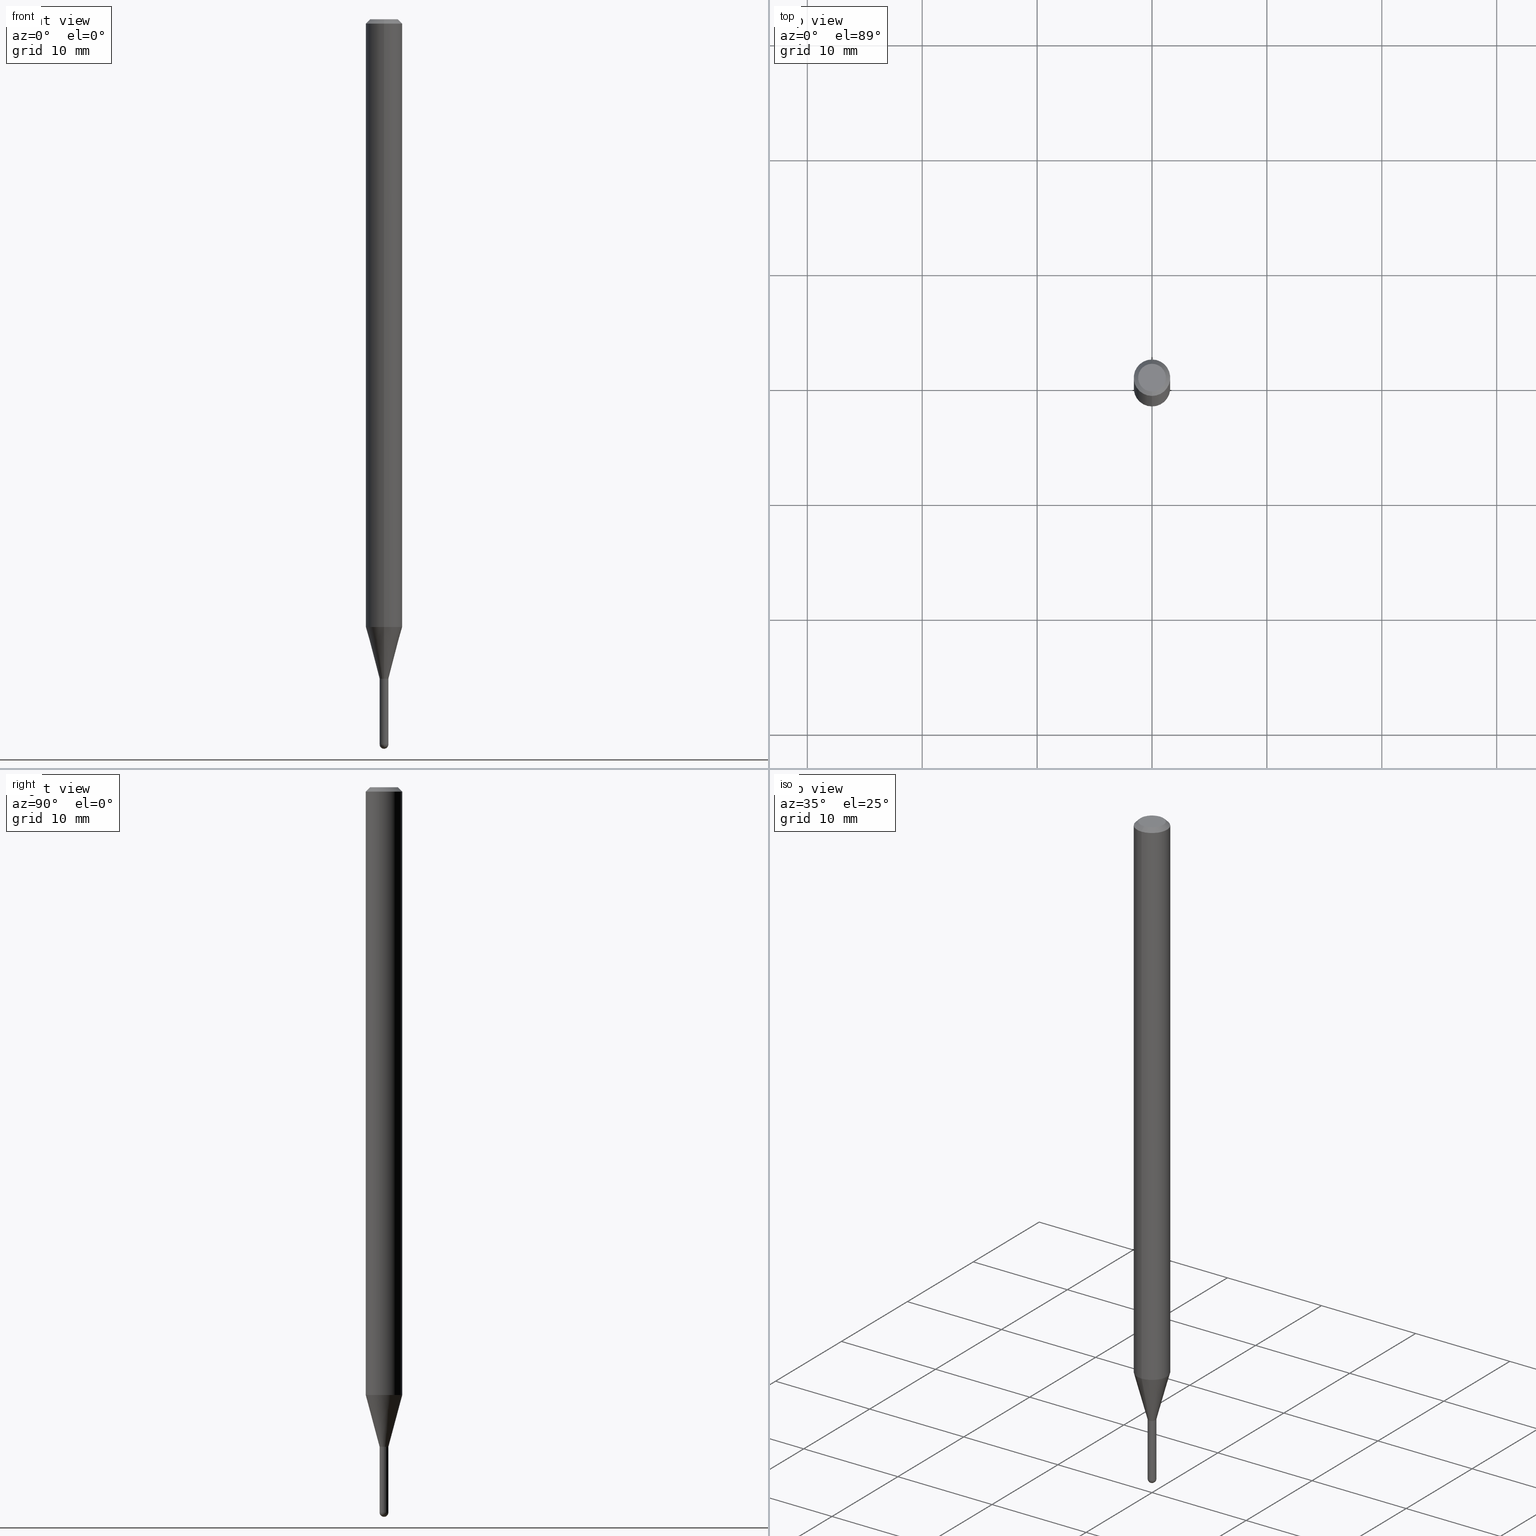
[diagram: canonical four-view strip — front | top / right | iso, engineering-drawing reading convention]
A machine part, canonical four-view strip (front | top / right | iso — engineering-drawing reading convention). The complete STEP part file that produces these views, byte-faithful:
ISO-10303-21;
HEADER;
FILE_DESCRIPTION (( 'STEP AP203' ),
    '1' );
FILE_NAME ('01531.STEP',
    '2024-03-07T19:37:06',
    ( '' ),
    ( '' ),
    'SwSTEP 2.0',
    'SolidWorks 2023',
    '' );
FILE_SCHEMA (( 'CONFIG_CONTROL_DESIGN' ));
ENDSEC;

DATA;
#1 = CARTESIAN_POINT ( 'NONE',  ( -0.01499999999999999771, -8.176958066041347477E-15, -2.484999999999999432 ) ) ;
#2 = APPROVAL_DATE_TIME ( #201, #327 ) ;
#3 = AXIS2_PLACEMENT_3D ( 'NONE', #276, #171, #8 ) ;
#4 = CARTESIAN_POINT ( 'NONE',  ( -4.364351673553408372E-16, -0.06250000000000728584, -2.082727586640484851 ) ) ;
#5 = ORIENTED_EDGE ( 'NONE', *, *, #286, .T. ) ;
#6 = DIRECTION ( 'NONE',  ( -6.982962677686265922E-15, -1.000000000000000000, 0.000000000000000000 ) ) ;
#7 = PERSON_AND_ORGANIZATION ( #439, #239 ) ;
#8 = DIRECTION ( 'NONE',  ( -6.982962677686265133E-15, -1.000000000000000000, 3.491391027709907932E-15 ) ) ;
#9 = CARTESIAN_POINT ( 'NONE',  ( 1.065814103640164291E-16, 0.01500000000000019894, -5.237086541564931268E-17 ) ) ;
#10 = EDGE_CURVE ( 'NONE', #387, #115, #427, .T. ) ;
#11 = AXIS2_PLACEMENT_3D ( 'NONE', #55, #248, #245 ) ;
#12 = CIRCLE ( 'NONE', #392, 0.01500000000000012608 ) ;
#13 = CYLINDRICAL_SURFACE ( 'NONE', #3, 0.01500000000000019894 ) ;
#14 = EDGE_CURVE ( 'NONE', #75, #159, #77, .T. ) ;
#15 = ORIENTED_EDGE ( 'NONE', *, *, #299, .T. ) ;
#16 = CARTESIAN_POINT ( 'NONE',  ( 0.000000000000000000, 0.000000000000000000, 0.000000000000000000 ) ) ;
#17 = CARTESIAN_POINT ( 'NONE',  ( 2.167868473204593348E-46, -3.094981762087513490E-32, -8.864609370659896502E-18 ) ) ;
#18 = PERSON_AND_ORGANIZATION ( #439, #239 ) ;
#19 = CIRCLE ( 'NONE', #108, 0.01499999999999999944 ) ;
#20 = CC_DESIGN_APPROVAL ( #65, ( #134 ) ) ;
#21 = LINE ( 'NONE', #410, #149 ) ;
#22 = AXIS2_PLACEMENT_3D ( 'NONE', #40, #110, #235 ) ;
#23 = CARTESIAN_POINT ( 'NONE',  ( -1.012529588263955736E-16, -0.01450000000000789026, -2.260000000000000675 ) ) ;
#24 = VERTEX_POINT ( 'NONE', #1 ) ;
#25 = LINE ( 'NONE', #378, #210 ) ;
#26 = ORIENTED_EDGE ( 'NONE', *, *, #365, .F. ) ;
#27 = DIRECTION ( 'NONE',  ( -2.445468806185136597E-29, 3.491481338843145583E-15, 1.000000000000000000 ) ) ;
#28 = CC_DESIGN_PERSON_AND_ORGANIZATION_ASSIGNMENT ( #18, #334, ( #134 ) ) ;
#29 = CIRCLE ( 'NONE', #231, 0.01499999999999999771 ) ;
#30 = LINE ( 'NONE', #265, #414 ) ;
#31 = EDGE_LOOP ( 'NONE', ( #278, #396, #360, #256 ) ) ;
#32 = DIRECTION ( 'NONE',  ( -6.982962677686265922E-15, -1.000000000000000000, 3.483106191921935554E-15 ) ) ;
#33 = EDGE_CURVE ( 'NONE', #140, #306, #506, .T. ) ;
#34 = ORIENTED_EDGE ( 'NONE', *, *, #64, .T. ) ;
#35 = VERTEX_POINT ( 'NONE', #155 ) ;
#36 = ORIENTED_EDGE ( 'NONE', *, *, #10, .F. ) ;
#37 = APPROVAL_PERSON_ORGANIZATION ( #139, #285, #488 ) ;
#38 = ORIENTED_EDGE ( 'NONE', *, *, #394, .F. ) ;
#39 = EDGE_LOOP ( 'NONE', ( #345, #456, #504, #88 ) ) ;
#40 = CARTESIAN_POINT ( 'NONE',  ( 5.526902026454056654E-29, -7.890543722624391870E-15, -2.260000000000000231 ) ) ;
#41 = DATE_AND_TIME ( #481, #349 ) ;
#42 = FACE_OUTER_BOUND ( 'NONE', #31, .T. ) ;
#43 = DIRECTION ( 'NONE',  ( 1.000000000000000000, 0.000000000000000000, 0.000000000000000000 ) ) ;
#44 = CIRCLE ( 'NONE', #184, 0.01500000000000019894 ) ;
#45 = AXIS2_PLACEMENT_3D ( 'NONE', #90, #243, #355 ) ;
#46 = DIRECTION ( 'NONE',  ( 2.445531870112414525E-29, -3.491391027709907932E-15, -1.000000000000000000 ) ) ;
#47 = CARTESIAN_POINT ( 'NONE',  ( 5.526902026454057775E-29, -7.890543722624393448E-15, -2.260000000000000675 ) ) ;
#48 = FACE_OUTER_BOUND ( 'NONE', #123, .T. ) ;
#49 =( CONVERSION_BASED_UNIT ( 'INCH', #125 ) LENGTH_UNIT ( ) NAMED_UNIT ( #495 ) );
#50 = CC_DESIGN_DATE_AND_TIME_ASSIGNMENT ( #336, #452, ( #332 ) ) ;
#51 = ORIENTED_EDGE ( 'NONE', *, *, #340, .T. ) ;
#52 = DIRECTION ( 'NONE',  ( -6.982962677686265922E-15, -1.000000000000000000, 0.000000000000000000 ) ) ;
#53 = EDGE_CURVE ( 'NONE', #35, #469, #272, .T. ) ;
#54 = CONICAL_SURFACE ( 'NONE', #290, 0.01450000000000000074, 0.7853981633974739252 ) ;
#55 = CARTESIAN_POINT ( 'NONE',  ( 1.047444401653492554E-16, 0.01499999999999210992, -2.260000000000000231 ) ) ;
#56 = DIRECTION ( 'NONE',  ( -6.982962677686265922E-15, -1.000000000000000000, 0.000000000000000000 ) ) ;
#57 = CARTESIAN_POINT ( 'NONE',  ( -1.047444401652401091E-16, -0.01500000000000809020, -2.260000000000000231 ) ) ;
#58 = CALENDAR_DATE ( 2024, 7, 3 ) ;
#59 = AXIS2_PLACEMENT_3D ( 'NONE', #287, #448, #96 ) ;
#60 = LOCAL_TIME ( 14, 37, 6.000000000000000000, #314 ) ;
#61 = DIRECTION ( 'NONE',  ( 1.000000000000000000, -6.982962677686204391E-15, 0.000000000000000000 ) ) ;
#62 = DIRECTION ( 'NONE',  ( -2.445531870112414525E-29, 3.491391027709907932E-15, 1.000000000000000000 ) ) ;
#63 = ADVANCED_FACE ( 'NONE', ( #313 ), #103, .T. ) ;
#64 = EDGE_CURVE ( 'NONE', #387, #390, #269, .T. ) ;
#65 = APPROVAL ( #240, 'UNSPECIFIED' ) ;
#66 = LINE ( 'NONE', #219, #407 ) ;
#67 = ADVANCED_FACE ( 'NONE', ( #79 ), #459, .T. ) ;
#68 = ORIENTED_EDGE ( 'NONE', *, *, #249, .T. ) ;
#69 = DIRECTION ( 'NONE',  ( -2.445531870112414525E-29, 3.491391027709907932E-15, 1.000000000000000000 ) ) ;
#70 = AXIS2_PLACEMENT_3D ( 'NONE', #382, #497, #374 ) ;
#71 = ORIENTED_EDGE ( 'NONE', *, *, #365, .T. ) ;
#72 = LINE ( 'NONE', #74, #257 ) ;
#73 = VERTEX_POINT ( 'NONE', #324 ) ;
#74 = CARTESIAN_POINT ( 'NONE',  ( -4.287811248607203282E-16, -0.06250000000000005551, -0.01499999999999979128 ) ) ;
#75 = VERTEX_POINT ( 'NONE', #4 ) ;
#76 = EDGE_LOOP ( 'NONE', ( #266, #113, #389, #120 ) ) ;
#77 = LINE ( 'NONE', #193, #310 ) ;
#78 = AXIS2_PLACEMENT_3D ( 'NONE', #288, #27, #261 ) ;
#79 = FACE_OUTER_BOUND ( 'NONE', #363, .T. ) ;
#80 = LINE ( 'NONE', #9, #87 ) ;
#81 = EDGE_CURVE ( 'NONE', #127, #140, #29, .T. ) ;
#82 = FACE_OUTER_BOUND ( 'NONE', #182, .T. ) ;
#83 = COORDINATED_UNIVERSAL_TIME_OFFSET ( 5, 0, .BEHIND. ) ;
#84 = DIRECTION ( 'NONE',  ( 1.000000000000000000, -6.982962677686204391E-15, 0.000000000000000000 ) ) ;
#85 = CALENDAR_DATE ( 2024, 7, 3 ) ;
#86 = AXIS2_PLACEMENT_3D ( 'NONE', #183, #337, #185 ) ;
#87 = VECTOR ( 'NONE', #441, 39.37007874015748143 ) ;
#88 = ORIENTED_EDGE ( 'NONE', *, *, #141, .F. ) ;
#89 = LINE ( 'NONE', #477, #317 ) ;
#90 = CARTESIAN_POINT ( 'NONE',  ( 5.526902026454057775E-29, -7.890543722624393448E-15, -2.260000000000000675 ) ) ;
#91 = ORIENTED_EDGE ( 'NONE', *, *, #141, .T. ) ;
#92 = CC_DESIGN_PERSON_AND_ORGANIZATION_ASSIGNMENT ( #122, #165, ( #395 ) ) ;
#93 = PLANE ( 'NONE',  #307 ) ;
#94 = APPLICATION_PROTOCOL_DEFINITION ( 'international standard', 'config_control_design', 1994, #206 ) ;
#95 = EDGE_LOOP ( 'NONE', ( #71, #430 ) ) ;
#96 = DIRECTION ( 'NONE',  ( -6.982962677686265922E-15, -1.000000000000000000, 3.483106191921935554E-15 ) ) ;
#97 = CARTESIAN_POINT ( 'NONE',  ( 5.526902026454057775E-29, -7.890543722624393448E-15, -2.260000000000000675 ) ) ;
#98 = DIRECTION ( 'NONE',  ( 6.982962677686265922E-15, 1.000000000000000000, 0.000000000000000000 ) ) ;
#99 = DIRECTION ( 'NONE',  ( -2.445531870112414525E-29, 3.491391027709907932E-15, 1.000000000000000000 ) ) ;
#100 = VECTOR ( 'NONE', #227, 39.37007874015748143 ) ;
#101 = CONICAL_SURFACE ( 'NONE', #233, 0.01450000000000000074, 0.7853981633974739252 ) ;
#102 = PLANE ( 'NONE',  #70 ) ;
#103 = CONICAL_SURFACE ( 'NONE', #500, 0.06250000000000000000, 0.7853981633974483900 ) ;
#104 = ADVANCED_FACE ( 'NONE', ( #82 ), #487, .T. ) ;
#105 = DIRECTION ( 'NONE',  ( -4.937700262164674260E-15, -0.7071067811865632269, 0.7071067811865319186 ) ) ;
#106 = CARTESIAN_POINT ( 'NONE',  ( 1.065814103640717110E-16, 0.01499999999999231115, -2.260000000000000231 ) ) ;
#107 = CARTESIAN_POINT ( 'NONE',  ( 3.668297805168624188E-31, -5.237086541564864708E-17, -0.01500000000000000812 ) ) ;
#108 = AXIS2_PLACEMENT_3D ( 'NONE', #189, #148, #229 ) ;
#109 = CC_DESIGN_APPROVAL ( #285, ( #332 ) ) ;
#110 = DIRECTION ( 'NONE',  ( -2.445531870112414525E-29, 3.491391027709907932E-15, 1.000000000000000000 ) ) ;
#111 = ORIENTED_EDGE ( 'NONE', *, *, #486, .F. ) ;
#112 = SPHERICAL_SURFACE ( 'NONE', #483, 0.01500000000000012608 ) ;
#113 = ORIENTED_EDGE ( 'NONE', *, *, #431, .T. ) ;
#114 = EDGE_LOOP ( 'NONE', ( #386, #316, #91, #367 ) ) ;
#115 = VERTEX_POINT ( 'NONE', #283 ) ;
#116 = ADVANCED_FACE ( 'NONE', ( #447 ), #93, .F. ) ;
#117 = AXIS2_PLACEMENT_3D ( 'NONE', #16, #329, #358 ) ;
#118 = DATE_TIME_ROLE ( 'creation_date' ) ;
#119 = CC_DESIGN_PERSON_AND_ORGANIZATION_ASSIGNMENT ( #281, #161, ( #134 ) ) ;
#120 = ORIENTED_EDGE ( 'NONE', *, *, #53, .F. ) ;
#121 = PLANE ( 'NONE',  #11 ) ;
#122 = PERSON_AND_ORGANIZATION ( #439, #239 ) ;
#123 = EDGE_LOOP ( 'NONE', ( #5, #273 ) ) ;
#124 = CARTESIAN_POINT ( 'NONE',  ( -1.065814103639546884E-16, -0.01500000000000874072, -2.484999999999999432 ) ) ;
#125 = LENGTH_MEASURE_WITH_UNIT ( LENGTH_MEASURE( 0.02539999999999999897 ), #205 );
#126 = CIRCLE ( 'NONE', #339, 0.04749999999999999362 ) ;
#127 = VERTEX_POINT ( 'NONE', #124 ) ;
#128 = DIRECTION ( 'NONE',  ( 6.982962677686265922E-15, 1.000000000000000000, -3.483106191921935554E-15 ) ) ;
#129 = CLOSED_SHELL ( 'NONE', ( #195, #362, #63, #353, #246, #158, #221, #67, #116, #319, #502, #457 ) ) ;
#130 = CARTESIAN_POINT ( 'NONE',  ( 4.440892098501133005E-16, 0.06249999999999271416, -2.082727586640485296 ) ) ;
#131 = ADVANCED_BREP_SHAPE_REPRESENTATION ( '01531', ( #376, #202, #509 ), #444 ) ;
#132 = CARTESIAN_POINT ( 'NONE',  ( -4.364351673553912750E-16, -0.06250000000000005551, -0.01499999999999979128 ) ) ;
#133 = CIRCLE ( 'NONE', #422, 0.01500000000000019894 ) ;
#134 = PRODUCT_DEFINITION_FORMATION_WITH_SPECIFIED_SOURCE ( 'ANY', '', #395, .NOT_KNOWN. ) ;
#135 = FACE_OUTER_BOUND ( 'NONE', #294, .T. ) ;
#136 = DIRECTION ( 'NONE',  ( -6.982962677686265133E-15, -1.000000000000000000, 0.000000000000000000 ) ) ;
#137 = ORIENTED_EDGE ( 'NONE', *, *, #384, .T. ) ;
#138 = CARTESIAN_POINT ( 'NONE',  ( 5.525679260519001860E-29, -7.888798027110538462E-15, -2.259500000000000508 ) ) ;
#139 = PERSON_AND_ORGANIZATION ( #439, #239 ) ;
#140 = VERTEX_POINT ( 'NONE', #280 ) ;
#141 = EDGE_CURVE ( 'NONE', #387, #75, #89, .T. ) ;
#142 = AXIS2_PLACEMENT_3D ( 'NONE', #162, #405, #52 ) ;
#143 = DIRECTION ( 'NONE',  ( -2.445531870112414525E-29, 3.491391027709907932E-15, 1.000000000000000000 ) ) ;
#144 = DIRECTION ( 'NONE',  ( -1.000000000000000000, 7.105427357601001070E-15, -4.926315508542082329E-29 ) ) ;
#145 = ORIENTED_EDGE ( 'NONE', *, *, #454, .T. ) ;
#146 = DIRECTION ( 'NONE',  ( -2.445531870112414525E-29, 3.491391027709907932E-15, 1.000000000000000000 ) ) ;
#147 = CARTESIAN_POINT ( 'NONE',  ( 3.668297805168624188E-31, -5.237086541564864708E-17, -0.01500000000000000812 ) ) ;
#148 = DIRECTION ( 'NONE',  ( -2.445468806185136597E-29, 3.491481338843145583E-15, 1.000000000000000000 ) ) ;
#149 = VECTOR ( 'NONE', #373, 39.37007874015748143 ) ;
#150 = AXIS2_PLACEMENT_3D ( 'NONE', #424, #146, #388 ) ;
#151 = CARTESIAN_POINT ( 'NONE',  ( 0.01499999999999999771, -1.047444401652939859E-16, 7.314265163693902638E-31 ) ) ;
#152 = APPLICATION_CONTEXT ( 'configuration controlled 3d designs of mechanical parts and assemblies' ) ;
#153 = ORIENTED_EDGE ( 'NONE', *, *, #380, .F. ) ;
#154 = ADVANCED_FACE ( 'NONE', ( #48 ), #121, .F. ) ;
#155 = CARTESIAN_POINT ( 'NONE',  ( 3.840629472727447874E-16, 0.04749999999999999362, -1.747056831868805136E-16 ) ) ;
#156 = CC_DESIGN_PERSON_AND_ORGANIZATION_ASSIGNMENT ( #473, #476, ( #511 ) ) ;
#157 = DIRECTION ( 'NONE',  ( 0.000000000000000000, 0.000000000000000000, 1.000000000000000000 ) ) ;
#158 = ADVANCED_FACE ( 'NONE', ( #204 ), #199, .T. ) ;
#159 = VERTEX_POINT ( 'NONE', #132 ) ;
#160 = AXIS2_PLACEMENT_3D ( 'NONE', #320, #361, #6 ) ;
#161 = PERSON_AND_ORGANIZATION_ROLE ( 'creator' ) ;
#162 = CARTESIAN_POINT ( 'NONE',  ( 5.526902026454056654E-29, -7.890543722624391870E-15, -2.260000000000000231 ) ) ;
#163 = DIRECTION ( 'NONE',  ( -6.982962677686265922E-15, -1.000000000000000000, 0.000000000000000000 ) ) ;
#164 = CARTESIAN_POINT ( 'NONE',  ( 1.065814103640713166E-16, 0.01499999999999225911, -2.259500000000000508 ) ) ;
#165 = PERSON_AND_ORGANIZATION_ROLE ( 'design_owner' ) ;
#166 = DIRECTION ( 'NONE',  ( 1.000000000000000000, -6.982962677686266711E-15, 4.876176775795935793E-29 ) ) ;
#167 = DIRECTION ( 'NONE',  ( -1.000000000000000000, 6.982962677686265922E-15, -4.883557194083112340E-29 ) ) ;
#168 = AXIS2_PLACEMENT_3D ( 'NONE', #209, #398, #207 ) ;
#169 = APPROVAL_PERSON_ORGANIZATION ( #406, #327, #369 ) ;
#170 = ORIENTED_EDGE ( 'NONE', *, *, #416, .T. ) ;
#171 = DIRECTION ( 'NONE',  ( -2.445531870112414525E-29, 3.491391027709907932E-15, 1.000000000000000000 ) ) ;
#172 = VERTEX_POINT ( 'NONE', #130 ) ;
#173 = EDGE_CURVE ( 'NONE', #418, #24, #297, .T. ) ;
#174 = CARTESIAN_POINT ( 'NONE',  ( 6.076989983370063053E-29, -8.676331127025215102E-15, -2.484999999999999432 ) ) ;
#175 = APPROVAL_DATE_TIME ( #372, #285 ) ;
#176 = DIRECTION ( 'NONE',  ( -2.445531870112414525E-29, 3.491391027709907932E-15, 1.000000000000000000 ) ) ;
#177 = CIRCLE ( 'NONE', #160, 0.01500000000000020067 ) ;
#178 = DIRECTION ( 'NONE',  ( -2.445531870112414525E-29, 3.491391027709907932E-15, 1.000000000000000000 ) ) ;
#179 = PERSON_AND_ORGANIZATION_ROLE ( 'classification_officer' ) ;
#180 = FACE_OUTER_BOUND ( 'NONE', #188, .T. ) ;
#181 = EDGE_CURVE ( 'NONE', #172, #75, #391, .T. ) ;
#182 = EDGE_LOOP ( 'NONE', ( #402, #51, #228, #247, #226 ) ) ;
#183 = CARTESIAN_POINT ( 'NONE',  ( 0.000000000000000000, 0.000000000000000000, 0.000000000000000000 ) ) ;
#184 = AXIS2_PLACEMENT_3D ( 'NONE', #409, #99, #379 ) ;
#185 = DIRECTION ( 'NONE',  ( -6.982962677686265922E-15, -1.000000000000000000, 3.491391027709907932E-15 ) ) ;
#186 = DIRECTION ( 'NONE',  ( -2.445531870112414525E-29, 3.491391027709908326E-15, 1.000000000000000000 ) ) ;
#187 = ORIENTED_EDGE ( 'NONE', *, *, #486, .T. ) ;
#188 = EDGE_LOOP ( 'NONE', ( #68, #170, #304, #351 ) ) ;
#189 = CARTESIAN_POINT ( 'NONE',  ( 5.526759501978408888E-29, -7.890747825785510097E-15, -2.260000000000000231 ) ) ;
#190 = ORIENTED_EDGE ( 'NONE', *, *, #508, .T. ) ;
#191 = AXIS2_PLACEMENT_3D ( 'NONE', #493, #462, #455 ) ;
#192 = LOCAL_TIME ( 14, 37, 6.000000000000000000, #255 ) ;
#193 = CARTESIAN_POINT ( 'NONE',  ( -4.364351673553916201E-16, -0.06250000000000000000, 2.182119392318692457E-16 ) ) ;
#194 = DIRECTION ( 'NONE',  ( 2.445531870112414525E-29, -3.491391027709907932E-15, -1.000000000000000000 ) ) ;
#195 = ADVANCED_FACE ( 'NONE', ( #364 ), #13, .F. ) ;
#196 = ORIENTED_EDGE ( 'NONE', *, *, #380, .T. ) ;
#197 = ORIENTED_EDGE ( 'NONE', *, *, #384, .F. ) ;
#198 = APPROVAL_DATE_TIME ( #41, #65 ) ;
#199 = CONICAL_SURFACE ( 'NONE', #142, 0.01500000000000020067, 0.2617993877991574569 ) ;
#200 = DIRECTION ( 'NONE',  ( -2.445468806185136597E-29, 3.491481338843145583E-15, 1.000000000000000000 ) ) ;
#201 = DATE_AND_TIME ( #85, #60 ) ;
#202 = MANIFOLD_SOLID_BREP ( 'Body-Move/Copy2[2]', #129 ) ;
#203 = ORIENTED_EDGE ( 'NONE', *, *, #81, .F. ) ;
#204 = FACE_OUTER_BOUND ( 'NONE', #114, .T. ) ;
#205 =( LENGTH_UNIT ( ) NAMED_UNIT ( * ) SI_UNIT ( $, .METRE. ) );
#206 = APPLICATION_CONTEXT ( 'configuration controlled 3d designs of mechanical parts and assemblies' ) ;
#207 = DIRECTION ( 'NONE',  ( -6.982962677686265922E-15, -1.000000000000000000, 4.370956789862821150E-15 ) ) ;
#208 = ORIENTED_EDGE ( 'NONE', *, *, #267, .T. ) ;
#209 = CARTESIAN_POINT ( 'NONE',  ( 5.093376689891620296E-29, -7.271616409160498436E-15, -2.082727586640484851 ) ) ;
#210 = VECTOR ( 'NONE', #218, 39.37007874015748143 ) ;
#211 = EDGE_CURVE ( 'NONE', #469, #159, #482, .T. ) ;
#212 = CYLINDRICAL_SURFACE ( 'NONE', #117, 0.06250000000000000000 ) ;
#213 = DIRECTION ( 'NONE',  ( -2.445531870112414525E-29, 3.491391027709907932E-15, 1.000000000000000000 ) ) ;
#214 = ADVANCED_FACE ( 'NONE', ( #408 ), #440, .T. ) ;
#215 = CARTESIAN_POINT ( 'NONE',  ( -1.047444401652404543E-16, -0.01500000000000813877, -2.259500000000000508 ) ) ;
#216 = SHAPE_DEFINITION_REPRESENTATION ( #315, #131 ) ;
#217 = LOCAL_TIME ( 14, 37, 6.000000000000000000, #83 ) ;
#218 = DIRECTION ( 'NONE',  ( -2.445468806185136877E-29, 3.491481338843145188E-15, 1.000000000000000000 ) ) ;
#219 = CARTESIAN_POINT ( 'NONE',  ( -1.012529588263955736E-16, -0.01450000000000789026, -2.260000000000000675 ) ) ;
#220 = SECURITY_CLASSIFICATION_LEVEL ( 'unclassified' ) ;
#221 = ADVANCED_FACE ( 'NONE', ( #42 ), #212, .T. ) ;
#222 = DIRECTION ( 'NONE',  ( -6.982962677686266711E-15, -1.000000000000000000, 3.491391027709907932E-15 ) ) ;
#223 = EDGE_CURVE ( 'NONE', #115, #387, #177, .T. ) ;
#224 = CIRCLE ( 'NONE', #191, 0.01499999999999999944 ) ;
#225 = LINE ( 'NONE', #106, #100 ) ;
#226 = ORIENTED_EDGE ( 'NONE', *, *, #449, .T. ) ;
#227 = DIRECTION ( 'NONE',  ( 1.839019923739649619E-15, 0.2588190451025318972, 0.9659258262890653146 ) ) ;
#228 = ORIENTED_EDGE ( 'NONE', *, *, #286, .F. ) ;
#229 = DIRECTION ( 'NONE',  ( 1.000000000000000000, -6.982962677686268288E-15, 0.000000000000000000 ) ) ;
#230 = VERTEX_POINT ( 'NONE', #164 ) ;
#231 = AXIS2_PLACEMENT_3D ( 'NONE', #400, #200, #480 ) ;
#232 = ADVANCED_FACE ( 'NONE', ( #321 ), #458, .T. ) ;
#233 = AXIS2_PLACEMENT_3D ( 'NONE', #47, #446, #163 ) ;
#234 = DIRECTION ( 'NONE',  ( -2.445468806185136877E-29, 3.491481338843145188E-15, 1.000000000000000000 ) ) ;
#235 = DIRECTION ( 'NONE',  ( -6.982962677686265922E-15, -1.000000000000000000, 0.000000000000000000 ) ) ;
#236 = APPROVAL_STATUS ( 'not_yet_approved' ) ;
#237 = CARTESIAN_POINT ( 'NONE',  ( 6.075707233936295932E-29, -8.678168097223937644E-15, -2.484999999999999876 ) ) ;
#238 =( NAMED_UNIT ( * ) SI_UNIT ( $, .STERADIAN. ) SOLID_ANGLE_UNIT ( ) );
#239 = ORGANIZATION ( 'UNSPECIFIED', 'UNSPECIFIED', '' ) ;
#240 = APPROVAL_STATUS ( 'not_yet_approved' ) ;
#241 = VERTEX_POINT ( 'NONE', #413 ) ;
#242 = DIRECTION ( 'NONE',  ( 6.982962677686265922E-15, 1.000000000000000000, -3.491391027709908326E-15 ) ) ;
#243 = DIRECTION ( 'NONE',  ( -2.445531870112414525E-29, 3.491391027709907932E-15, 1.000000000000000000 ) ) ;
#244 = ORIENTED_EDGE ( 'NONE', *, *, #431, .F. ) ;
#245 = DIRECTION ( 'NONE',  ( -1.000000000000000000, 6.982962677686265922E-15, -4.876176775795935793E-29 ) ) ;
#246 = ADVANCED_FACE ( 'NONE', ( #335 ), #507, .T. ) ;
#247 = ORIENTED_EDGE ( 'NONE', *, *, #33, .F. ) ;
#248 = DIRECTION ( 'NONE',  ( 2.438088387897960049E-29, -3.491481338843145188E-15, -1.000000000000000000 ) ) ;
#249 = EDGE_CURVE ( 'NONE', #75, #172, #348, .T. ) ;
#250 = CIRCLE ( 'NONE', #331, 0.01500000000000012608 ) ;
#251 = DIRECTION ( 'NONE',  ( -2.445531870112414525E-29, 3.491391027709907932E-15, 1.000000000000000000 ) ) ;
#252 = VECTOR ( 'NONE', #350, 39.37007874015748143 ) ;
#253 = CYLINDRICAL_SURFACE ( 'NONE', #86, 0.06250000000000000000 ) ;
#254 = CARTESIAN_POINT ( 'NONE',  ( 5.526902026454056654E-29, -7.890543722624391870E-15, -2.260000000000000231 ) ) ;
#255 = COORDINATED_UNIVERSAL_TIME_OFFSET ( 5, 0, .BEHIND. ) ;
#256 = ORIENTED_EDGE ( 'NONE', *, *, #211, .F. ) ;
#257 = VECTOR ( 'NONE', #268, 39.37007874015748143 ) ;
#258 = DIRECTION ( 'NONE',  ( -6.982962677686266711E-15, -1.000000000000000000, 3.491391027709907932E-15 ) ) ;
#259 = EDGE_LOOP ( 'NONE', ( #461, #137, #354, #203 ) ) ;
#260 = VECTOR ( 'NONE', #234, 39.37007874015748143 ) ;
#261 = DIRECTION ( 'NONE',  ( 1.000000000000000000, -6.982962677686266711E-15, 4.876176775795935793E-29 ) ) ;
#262 = EDGE_CURVE ( 'NONE', #24, #127, #491, .T. ) ;
#263 = CYLINDRICAL_SURFACE ( 'NONE', #150, 0.01500000000000019894 ) ;
#264 = AXIS2_PLACEMENT_3D ( 'NONE', #298, #494, #419 ) ;
#265 = CARTESIAN_POINT ( 'NONE',  ( 4.440892098500625669E-16, 0.06250000000000000000, -2.182119392318692457E-16 ) ) ;
#266 = ORIENTED_EDGE ( 'NONE', *, *, #305, .F. ) ;
#267 = EDGE_CURVE ( 'NONE', #342, #390, #66, .T. ) ;
#268 = DIRECTION ( 'NONE',  ( -4.851104656540964275E-15, -0.7071067811865500152, -0.7071067811865450192 ) ) ;
#269 = LINE ( 'NONE', #436, #252 ) ;
#270 = EDGE_CURVE ( 'NONE', #241, #342, #450, .T. ) ;
#271 = ORIENTED_EDGE ( 'NONE', *, *, #299, .F. ) ;
#272 = LINE ( 'NONE', #393, #438 ) ;
#273 = ORIENTED_EDGE ( 'NONE', *, *, #394, .T. ) ;
#274 = ORIENTED_EDGE ( 'NONE', *, *, #508, .F. ) ;
#275 = DIRECTION ( 'NONE',  ( 6.982962677686265922E-15, 1.000000000000000000, 0.000000000000000000 ) ) ;
#276 = CARTESIAN_POINT ( 'NONE',  ( 0.000000000000000000, 0.000000000000000000, 0.000000000000000000 ) ) ;
#277 = FACE_OUTER_BOUND ( 'NONE', #472, .T. ) ;
#278 = ORIENTED_EDGE ( 'NONE', *, *, #416, .F. ) ;
#279 = AXIS2_PLACEMENT_3D ( 'NONE', #107, #69, #32 ) ;
#280 = CARTESIAN_POINT ( 'NONE',  ( 0.01499999999999999771, -8.388283916570655181E-15, -2.484999999999999432 ) ) ;
#281 = PERSON_AND_ORGANIZATION ( #439, #239 ) ;
#282 = ORIENTED_EDGE ( 'NONE', *, *, #270, .T. ) ;
#283 = CARTESIAN_POINT ( 'NONE',  ( 2.753353101070928077E-16, 0.01499999999999231289, -2.260000000000000231 ) ) ;
#284 = CARTESIAN_POINT ( 'NONE',  ( 0.000000000000000000, 0.000000000000000000, 0.000000000000000000 ) ) ;
#285 = APPROVAL ( #490, 'UNSPECIFIED' ) ;
#286 = EDGE_CURVE ( 'NONE', #306, #296, #224, .T. ) ;
#287 = CARTESIAN_POINT ( 'NONE',  ( 3.668297805168624188E-31, -5.237086541564864708E-17, -0.01500000000000000812 ) ) ;
#288 = CARTESIAN_POINT ( 'NONE',  ( 0.000000000000000000, 0.000000000000000000, 0.000000000000000000 ) ) ;
#289 = PERSON_AND_ORGANIZATION ( #439, #239 ) ;
#290 = AXIS2_PLACEMENT_3D ( 'NONE', #97, #251, #56 ) ;
#291 = FACE_OUTER_BOUND ( 'NONE', #352, .T. ) ;
#292 = CLOSED_SHELL ( 'NONE', ( #104, #471, #154, #214, #232 ) ) ;
#293 = DIRECTION ( 'NONE',  ( -6.982962677686265922E-15, -1.000000000000000000, 0.000000000000000000 ) ) ;
#294 = EDGE_LOOP ( 'NONE', ( #274, #301 ) ) ;
#295 = CARTESIAN_POINT ( 'NONE',  ( 6.075707233936295932E-29, -8.678168097223937644E-15, -2.484999999999999876 ) ) ;
#296 = VERTEX_POINT ( 'NONE', #451 ) ;
#297 = CIRCLE ( 'NONE', #357, 0.01499999999999999771 ) ;
#298 = CARTESIAN_POINT ( 'NONE',  ( 5.526902026454057775E-29, -7.890543722624393448E-15, -2.260000000000000675 ) ) ;
#299 = EDGE_CURVE ( 'NONE', #230, #390, #44, .T. ) ;
#300 = DIRECTION ( 'NONE',  ( -7.105427357601001070E-15, -1.000000000000000000, 0.000000000000000000 ) ) ;
#301 = ORIENTED_EDGE ( 'NONE', *, *, #270, .F. ) ;
#302 = CARTESIAN_POINT ( 'NONE',  ( 1.047444401653551842E-16, 0.01499999999999138481, -2.484999999999999432 ) ) ;
#303 = EDGE_LOOP ( 'NONE', ( #421, #344, #312, #479, #38 ) ) ;
#304 = ORIENTED_EDGE ( 'NONE', *, *, #412, .F. ) ;
#305 = EDGE_CURVE ( 'NONE', #73, #35, #474, .T. ) ;
#306 = VERTEX_POINT ( 'NONE', #333 ) ;
#307 = AXIS2_PLACEMENT_3D ( 'NONE', #328, #489, #242 ) ;
#308 = AXIS2_PLACEMENT_3D ( 'NONE', #385, #420, #503 ) ;
#309 = DIRECTION ( 'NONE',  ( 6.982962677686265922E-15, 1.000000000000000000, -3.483106191921935554E-15 ) ) ;
#310 = VECTOR ( 'NONE', #470, 39.37007874015748143 ) ;
#311 = ORIENTED_EDGE ( 'NONE', *, *, #267, .F. ) ;
#312 = ORIENTED_EDGE ( 'NONE', *, *, #81, .T. ) ;
#313 = FACE_OUTER_BOUND ( 'NONE', #76, .T. ) ;
#314 = COORDINATED_UNIVERSAL_TIME_OFFSET ( 5, 0, .BEHIND. ) ;
#315 = PRODUCT_DEFINITION_SHAPE ( 'NONE', 'NONE',  #511 ) ;
#316 = ORIENTED_EDGE ( 'NONE', *, *, #223, .T. ) ;
#317 = VECTOR ( 'NONE', #445, 39.37007874015748854 ) ;
#318 = DIRECTION ( 'NONE',  ( 4.937700262164548042E-15, 0.7071067811865451302, -0.7071067811865499042 ) ) ;
#319 = ADVANCED_FACE ( 'NONE', ( #135 ), #102, .F. ) ;
#320 = CARTESIAN_POINT ( 'NONE',  ( 5.526902026454056654E-29, -7.890543722624391870E-15, -2.260000000000000231 ) ) ;
#321 = FACE_OUTER_BOUND ( 'NONE', #303, .T. ) ;
#322 = UNCERTAINTY_MEASURE_WITH_UNIT (LENGTH_MEASURE( 1.000000000000000082E-05 ), #49, 'distance_accuracy_value', 'NONE');
#323 = AXIS2_PLACEMENT_3D ( 'NONE', #330, #62, #498 ) ;
#324 = CARTESIAN_POINT ( 'NONE',  ( -3.773273898774340269E-16, -0.04749999999999999362, 1.569764644455607330E-16 ) ) ;
#325 = LOCAL_TIME ( 14, 37, 6.000000000000000000, #415 ) ;
#326 = MECHANICAL_CONTEXT ( 'NONE', #152, 'mechanical' ) ;
#327 = APPROVAL ( #236, 'UNSPECIFIED' ) ;
#328 = CARTESIAN_POINT ( 'NONE',  ( 3.316907271900976096E-16, 0.04749999999999999362, -1.702733785015505623E-16 ) ) ;
#329 = DIRECTION ( 'NONE',  ( -2.445531870112414525E-29, 3.491391027709907932E-15, 1.000000000000000000 ) ) ;
#330 = CARTESIAN_POINT ( 'NONE',  ( 5.093376689891620296E-29, -7.271616409160498436E-15, -2.082727586640484851 ) ) ;
#331 = AXIS2_PLACEMENT_3D ( 'NONE', #295, #417, #98 ) ;
#332 = SECURITY_CLASSIFICATION ( '', '', #220 ) ;
#333 = CARTESIAN_POINT ( 'NONE',  ( 0.01499999999999999944, -7.995492265950803467E-15, -2.260000000000000231 ) ) ;
#334 = PERSON_AND_ORGANIZATION_ROLE ( 'design_supplier' ) ;
#335 = FACE_OUTER_BOUND ( 'NONE', #39, .T. ) ;
#336 = DATE_AND_TIME ( #411, #192 ) ;
#337 = DIRECTION ( 'NONE',  ( -2.445531870112414525E-29, 3.491391027709907932E-15, 1.000000000000000000 ) ) ;
#338 = CC_DESIGN_PERSON_AND_ORGANIZATION_ASSIGNMENT ( #289, #179, ( #332 ) ) ;
#339 = AXIS2_PLACEMENT_3D ( 'NONE', #453, #213, #258 ) ;
#340 = EDGE_CURVE ( 'NONE', #24, #296, #25, .T. ) ;
#341 = CARTESIAN_POINT ( 'NONE',  ( 6.076989983370063053E-29, -8.676331127025215102E-15, -2.484999999999999432 ) ) ;
#342 = VERTEX_POINT ( 'NONE', #23 ) ;
#343 = CARTESIAN_POINT ( 'NONE',  ( 6.113030640745957931E-29, -8.729621832207224636E-15, -2.500000000000000000 ) ) ;
#344 = ORIENTED_EDGE ( 'NONE', *, *, #262, .T. ) ;
#345 = ORIENTED_EDGE ( 'NONE', *, *, #10, .T. ) ;
#346 = FACE_OUTER_BOUND ( 'NONE', #426, .T. ) ;
#347 = ORIENTED_EDGE ( 'NONE', *, *, #223, .F. ) ;
#348 = CIRCLE ( 'NONE', #323, 0.06250000000000000000 ) ;
#349 = LOCAL_TIME ( 14, 37, 6.000000000000000000, #401 ) ;
#350 = DIRECTION ( 'NONE',  ( -2.445531870112414525E-29, 3.491391027709908326E-15, 1.000000000000000000 ) ) ;
#351 = ORIENTED_EDGE ( 'NONE', *, *, #14, .F. ) ;
#352 = EDGE_LOOP ( 'NONE', ( #190, #484, #153, #311 ) ) ;
#353 = ADVANCED_FACE ( 'NONE', ( #180 ), #253, .T. ) ;
#354 = ORIENTED_EDGE ( 'NONE', *, *, #449, .F. ) ;
#355 = DIRECTION ( 'NONE',  ( -6.982962677686265922E-15, -1.000000000000000000, 0.000000000000000000 ) ) ;
#356 = AXIS2_PLACEMENT_3D ( 'NONE', #254, #143, #293 ) ;
#357 = AXIS2_PLACEMENT_3D ( 'NONE', #174, #403, #84 ) ;
#358 = DIRECTION ( 'NONE',  ( -6.982962677686265922E-15, -1.000000000000000000, 3.491391027709907932E-15 ) ) ;
#359 = DATE_AND_TIME ( #478, #217 ) ;
#360 = ORIENTED_EDGE ( 'NONE', *, *, #14, .T. ) ;
#361 = DIRECTION ( 'NONE',  ( -2.445531870112414525E-29, 3.491391027709907932E-15, 1.000000000000000000 ) ) ;
#362 = ADVANCED_FACE ( 'NONE', ( #291 ), #54, .T. ) ;
#363 = EDGE_LOOP ( 'NONE', ( #244, #26, #496, #475 ) ) ;
#364 = FACE_OUTER_BOUND ( 'NONE', #512, .T. ) ;
#365 = EDGE_CURVE ( 'NONE', #35, #73, #126, .T. ) ;
#366 = APPLICATION_PROTOCOL_DEFINITION ( 'international standard', 'config_control_design', 1994, #152 ) ;
#367 = ORIENTED_EDGE ( 'NONE', *, *, #181, .F. ) ;
#368 = DIRECTION ( 'NONE',  ( -2.445468806185136597E-29, 3.491481338843145583E-15, 1.000000000000000000 ) ) ;
#369 = APPROVAL_ROLE ( '' ) ;
#370 = EDGE_CURVE ( 'NONE', #241, #230, #21, .T. ) ;
#371 = DIRECTION ( 'NONE',  ( -1.000000000000000000, 6.982962677686265922E-15, -4.883557194083112340E-29 ) ) ;
#372 = DATE_AND_TIME ( #58, #325 ) ;
#373 = DIRECTION ( 'NONE',  ( 5.024295867788190974E-15, 0.7071067811865681119, 0.7071067811865270336 ) ) ;
#374 = DIRECTION ( 'NONE',  ( -6.982962677686265922E-15, -1.000000000000000000, 3.491391027709908326E-15 ) ) ;
#375 = CIRCLE ( 'NONE', #45, 0.01450000000000000074 ) ;
#376 = MANIFOLD_SOLID_BREP ( 'Body-Move/Copy2[1]', #292 ) ;
#377 = DESIGN_CONTEXT ( 'detailed design', #206, 'design' ) ;
#378 = CARTESIAN_POINT ( 'NONE',  ( -0.01499999999999999771, 1.065814103640150116E-16, -7.378402635382356781E-31 ) ) ;
#379 = DIRECTION ( 'NONE',  ( -6.982962677686265133E-15, -1.000000000000000000, 0.000000000000000000 ) ) ;
#380 = EDGE_CURVE ( 'NONE', #390, #230, #133, .T. ) ;
#381 = ORIENTED_EDGE ( 'NONE', *, *, #262, .F. ) ;
#382 = CARTESIAN_POINT ( 'NONE',  ( 5.526902026454057775E-29, -7.890543722624393448E-15, -2.260000000000000675 ) ) ;
#383 = AXIS2_PLACEMENT_3D ( 'NONE', #237, #371, #442 ) ;
#384 = EDGE_CURVE ( 'NONE', #425, #418, #250, .T. ) ;
#385 = CARTESIAN_POINT ( 'NONE',  ( 6.076989983370063053E-29, -8.676331127025215102E-15, -2.484999999999999432 ) ) ;
#386 = ORIENTED_EDGE ( 'NONE', *, *, #435, .F. ) ;
#387 = VERTEX_POINT ( 'NONE', #57 ) ;
#388 = DIRECTION ( 'NONE',  ( -6.982962677686265133E-15, -1.000000000000000000, 3.491391027709907932E-15 ) ) ;
#389 = ORIENTED_EDGE ( 'NONE', *, *, #412, .T. ) ;
#390 = VERTEX_POINT ( 'NONE', #215 ) ;
#391 = CIRCLE ( 'NONE', #168, 0.06250000000000000000 ) ;
#392 = AXIS2_PLACEMENT_3D ( 'NONE', #463, #144, #300 ) ;
#393 = CARTESIAN_POINT ( 'NONE',  ( 4.364351673553919652E-16, 0.06249999999999995143, -0.01500000000000022669 ) ) ;
#394 = EDGE_CURVE ( 'NONE', #296, #306, #19, .T. ) ;
#395 = PRODUCT ( '01531', '01531', '', ( #326 ) ) ;
#396 = ORIENTED_EDGE ( 'NONE', *, *, #181, .T. ) ;
#397 = APPROVAL_ROLE ( '' ) ;
#398 = DIRECTION ( 'NONE',  ( -2.445531870112414525E-29, 3.491391027709907932E-15, 1.000000000000000000 ) ) ;
#399 = AXIS2_PLACEMENT_3D ( 'NONE', #485, #368, #166 ) ;
#400 = CARTESIAN_POINT ( 'NONE',  ( 6.076989983370063053E-29, -8.676331127025215102E-15, -2.484999999999999432 ) ) ;
#401 = COORDINATED_UNIVERSAL_TIME_OFFSET ( 5, 0, .BEHIND. ) ;
#402 = ORIENTED_EDGE ( 'NONE', *, *, #173, .T. ) ;
#403 = DIRECTION ( 'NONE',  ( -2.445468806185136597E-29, 3.491481338843145583E-15, 1.000000000000000000 ) ) ;
#404 = ORIENTED_EDGE ( 'NONE', *, *, #64, .F. ) ;
#405 = DIRECTION ( 'NONE',  ( -2.445531870112414525E-29, 3.491391027709907932E-15, 1.000000000000000000 ) ) ;
#406 = PERSON_AND_ORGANIZATION ( #439, #239 ) ;
#407 = VECTOR ( 'NONE', #105, 39.37007874015748143 ) ;
#408 = FACE_OUTER_BOUND ( 'NONE', #259, .T. ) ;
#409 = CARTESIAN_POINT ( 'NONE',  ( 5.525679260519001860E-29, -7.888798027110538462E-15, -2.259500000000000508 ) ) ;
#410 = CARTESIAN_POINT ( 'NONE',  ( 1.030286966852697894E-16, 0.01449999999999211121, -2.260000000000000675 ) ) ;
#411 = CALENDAR_DATE ( 2024, 7, 3 ) ;
#412 = EDGE_CURVE ( 'NONE', #159, #469, #443, .T. ) ;
#413 = CARTESIAN_POINT ( 'NONE',  ( 1.048050535246707440E-16, 0.01449999999999211121, -2.260000000000000675 ) ) ;
#414 = VECTOR ( 'NONE', #186, 39.37007874015748143 ) ;
#415 = COORDINATED_UNIVERSAL_TIME_OFFSET ( 5, 0, .BEHIND. ) ;
#416 = EDGE_CURVE ( 'NONE', #172, #469, #30, .T. ) ;
#417 = DIRECTION ( 'NONE',  ( 1.000000000000000000, -6.982962677686265922E-15, 4.883557194083112340E-29 ) ) ;
#418 = VERTEX_POINT ( 'NONE', #302 ) ;
#419 = DIRECTION ( 'NONE',  ( -6.982962677686265922E-15, -1.000000000000000000, 0.000000000000000000 ) ) ;
#420 = DIRECTION ( 'NONE',  ( -2.445468806185136597E-29, 3.491481338843145583E-15, 1.000000000000000000 ) ) ;
#421 = ORIENTED_EDGE ( 'NONE', *, *, #340, .F. ) ;
#422 = AXIS2_PLACEMENT_3D ( 'NONE', #138, #176, #136 ) ;
#423 = CC_DESIGN_SECURITY_CLASSIFICATION ( #332, ( #134 ) ) ;
#424 = CARTESIAN_POINT ( 'NONE',  ( 0.000000000000000000, 0.000000000000000000, 0.000000000000000000 ) ) ;
#425 = VERTEX_POINT ( 'NONE', #343 ) ;
#426 = EDGE_LOOP ( 'NONE', ( #111, #36, #34, #196 ) ) ;
#427 = CIRCLE ( 'NONE', #22, 0.01500000000000020067 ) ;
#428 = CARTESIAN_POINT ( 'NONE',  ( 6.075707233936295932E-29, -8.678168097223937644E-15, -2.484999999999999876 ) ) ;
#429 = ORIENTED_EDGE ( 'NONE', *, *, #173, .F. ) ;
#430 = ORIENTED_EDGE ( 'NONE', *, *, #305, .T. ) ;
#431 = EDGE_CURVE ( 'NONE', #73, #159, #72, .T. ) ;
#432 = PRODUCT_RELATED_PRODUCT_CATEGORY ( 'detail', '', ( #395 ) ) ;
#433 = AXIS2_PLACEMENT_3D ( 'NONE', #341, #501, #61 ) ;
#434 = CC_DESIGN_DATE_AND_TIME_ASSIGNMENT ( #359, #118, ( #511 ) ) ;
#435 = EDGE_CURVE ( 'NONE', #115, #172, #225, .T. ) ;
#436 = CARTESIAN_POINT ( 'NONE',  ( -1.047444401652953664E-16, -0.01500000000000019894, 5.237086541564931268E-17 ) ) ;
#437 =( NAMED_UNIT ( * ) PLANE_ANGLE_UNIT ( ) SI_UNIT ( $, .RADIAN. ) );
#438 = VECTOR ( 'NONE', #318, 39.37007874015748143 ) ;
#439 = PERSON ( 'UNSPECIFIED', 'UNSPECIFIED', 'UNSPECIFIED', ('UNSPECIFIED'), ('UNSPECIFIED'), ('UNSPECIFIED') ) ;
#440 = SPHERICAL_SURFACE ( 'NONE', #383, 0.01500000000000012608 ) ;
#441 = DIRECTION ( 'NONE',  ( -2.445531870112414525E-29, 3.491391027709908326E-15, 1.000000000000000000 ) ) ;
#442 = DIRECTION ( 'NONE',  ( 6.982962677686265922E-15, 1.000000000000000000, 0.000000000000000000 ) ) ;
#443 = CIRCLE ( 'NONE', #279, 0.06250000000000000000 ) ;
#444 =( GEOMETRIC_REPRESENTATION_CONTEXT ( 3 ) GLOBAL_UNCERTAINTY_ASSIGNED_CONTEXT ( ( #322 ) ) GLOBAL_UNIT_ASSIGNED_CONTEXT ( ( #49, #437, #238 ) ) REPRESENTATION_CONTEXT ( 'NONE', 'WORKASPACE' ) );
#445 = DIRECTION ( 'NONE',  ( -1.807323732225378654E-15, -0.2588190451025251249, 0.9659258262890670910 ) ) ;
#446 = DIRECTION ( 'NONE',  ( -2.445531870112414525E-29, 3.491391027709907932E-15, 1.000000000000000000 ) ) ;
#447 = FACE_OUTER_BOUND ( 'NONE', #95, .T. ) ;
#448 = DIRECTION ( 'NONE',  ( -2.445531870112414525E-29, 3.491391027709907932E-15, 1.000000000000000000 ) ) ;
#449 = EDGE_CURVE ( 'NONE', #140, #418, #467, .T. ) ;
#450 = CIRCLE ( 'NONE', #264, 0.01450000000000000074 ) ;
#451 = CARTESIAN_POINT ( 'NONE',  ( -0.01500000000000000291, -8.176958066041347477E-15, -2.260000000000000231 ) ) ;
#452 = DATE_TIME_ROLE ( 'classification_date' ) ;
#453 = CARTESIAN_POINT ( 'NONE',  ( 2.167868473204593348E-46, -3.094981762087513490E-32, -8.864609370659896502E-18 ) ) ;
#454 = EDGE_CURVE ( 'NONE', #425, #127, #12, .T. ) ;
#455 = DIRECTION ( 'NONE',  ( 1.000000000000000000, -6.982962677686268288E-15, 0.000000000000000000 ) ) ;
#456 = ORIENTED_EDGE ( 'NONE', *, *, #435, .T. ) ;
#457 = ADVANCED_FACE ( 'NONE', ( #346 ), #263, .F. ) ;
#458 = CYLINDRICAL_SURFACE ( 'NONE', #78, 0.01499999999999999771 ) ;
#459 = CONICAL_SURFACE ( 'NONE', #466, 0.06250000000000000000, 0.7853981633974483900 ) ;
#460 = CC_DESIGN_APPROVAL ( #327, ( #511 ) ) ;
#461 = ORIENTED_EDGE ( 'NONE', *, *, #454, .F. ) ;
#462 = DIRECTION ( 'NONE',  ( -2.445468806185136597E-29, 3.491481338843145583E-15, 1.000000000000000000 ) ) ;
#463 = CARTESIAN_POINT ( 'NONE',  ( 6.075707233936295932E-29, -8.678168097223937644E-15, -2.484999999999999876 ) ) ;
#464 = CARTESIAN_POINT ( 'NONE',  ( 4.440892098501138921E-16, 0.06249999999999995143, -0.01500000000000022669 ) ) ;
#465 = EDGE_LOOP ( 'NONE', ( #197, #145, #381, #429 ) ) ;
#466 = AXIS2_PLACEMENT_3D ( 'NONE', #510, #46, #128 ) ;
#467 = CIRCLE ( 'NONE', #308, 0.01499999999999999771 ) ;
#468 = ORIENTED_EDGE ( 'NONE', *, *, #370, .F. ) ;
#469 = VERTEX_POINT ( 'NONE', #464 ) ;
#470 = DIRECTION ( 'NONE',  ( -2.445531870112414525E-29, 3.491391027709908326E-15, 1.000000000000000000 ) ) ;
#471 = ADVANCED_FACE ( 'NONE', ( #505 ), #112, .T. ) ;
#472 = EDGE_LOOP ( 'NONE', ( #468, #282, #208, #271 ) ) ;
#473 = PERSON_AND_ORGANIZATION ( #439, #239 ) ;
#474 = CIRCLE ( 'NONE', #499, 0.04749999999999999362 ) ;
#475 = ORIENTED_EDGE ( 'NONE', *, *, #211, .T. ) ;
#476 = PERSON_AND_ORGANIZATION_ROLE ( 'creator' ) ;
#477 = CARTESIAN_POINT ( 'NONE',  ( -1.047444401652401091E-16, -0.01500000000000809020, -2.260000000000000231 ) ) ;
#478 = CALENDAR_DATE ( 2024, 7, 3 ) ;
#479 = ORIENTED_EDGE ( 'NONE', *, *, #33, .T. ) ;
#480 = DIRECTION ( 'NONE',  ( 1.000000000000000000, -6.982962677686204391E-15, 0.000000000000000000 ) ) ;
#481 = CALENDAR_DATE ( 2024, 7, 3 ) ;
#482 = CIRCLE ( 'NONE', #59, 0.06250000000000000000 ) ;
#483 = AXIS2_PLACEMENT_3D ( 'NONE', #428, #167, #275 ) ;
#484 = ORIENTED_EDGE ( 'NONE', *, *, #370, .T. ) ;
#485 = CARTESIAN_POINT ( 'NONE',  ( 0.000000000000000000, 0.000000000000000000, 0.000000000000000000 ) ) ;
#486 = EDGE_CURVE ( 'NONE', #115, #230, #80, .T. ) ;
#487 = CYLINDRICAL_SURFACE ( 'NONE', #399, 0.01499999999999999771 ) ;
#488 = APPROVAL_ROLE ( '' ) ;
#489 = DIRECTION ( 'NONE',  ( 2.445531870112413685E-29, -3.491391027709908326E-15, -1.000000000000000000 ) ) ;
#490 = APPROVAL_STATUS ( 'not_yet_approved' ) ;
#491 = CIRCLE ( 'NONE', #433, 0.01499999999999999771 ) ;
#492 = APPROVAL_PERSON_ORGANIZATION ( #7, #65, #397 ) ;
#493 = CARTESIAN_POINT ( 'NONE',  ( 5.526759501978408888E-29, -7.890747825785510097E-15, -2.260000000000000231 ) ) ;
#494 = DIRECTION ( 'NONE',  ( -2.445531870112414525E-29, 3.491391027709907932E-15, 1.000000000000000000 ) ) ;
#495 = DIMENSIONAL_EXPONENTS ( 1.000000000000000000, 0.000000000000000000, 0.000000000000000000, 0.000000000000000000, 0.000000000000000000, 0.000000000000000000, 0.000000000000000000 ) ;
#496 = ORIENTED_EDGE ( 'NONE', *, *, #53, .T. ) ;
#497 = DIRECTION ( 'NONE',  ( -2.445531870112413685E-29, 3.491391027709908326E-15, 1.000000000000000000 ) ) ;
#498 = DIRECTION ( 'NONE',  ( -6.982962677686265922E-15, -1.000000000000000000, 4.370956789862821150E-15 ) ) ;
#499 = AXIS2_PLACEMENT_3D ( 'NONE', #17, #178, #222 ) ;
#500 = AXIS2_PLACEMENT_3D ( 'NONE', #147, #194, #309 ) ;
#501 = DIRECTION ( 'NONE',  ( -2.445468806185136597E-29, 3.491481338843145583E-15, 1.000000000000000000 ) ) ;
#502 = ADVANCED_FACE ( 'NONE', ( #277 ), #101, .T. ) ;
#503 = DIRECTION ( 'NONE',  ( 1.000000000000000000, -6.982962677686204391E-15, 0.000000000000000000 ) ) ;
#504 = ORIENTED_EDGE ( 'NONE', *, *, #249, .F. ) ;
#505 = FACE_OUTER_BOUND ( 'NONE', #465, .T. ) ;
#506 = LINE ( 'NONE', #151, #260 ) ;
#507 = CONICAL_SURFACE ( 'NONE', #356, 0.01500000000000020067, 0.2617993877991574569 ) ;
#508 = EDGE_CURVE ( 'NONE', #342, #241, #375, .T. ) ;
#509 = AXIS2_PLACEMENT_3D ( 'NONE', #284, #157, #43 ) ;
#510 = CARTESIAN_POINT ( 'NONE',  ( 3.668297805168624188E-31, -5.237086541564864708E-17, -0.01500000000000000812 ) ) ;
#511 = PRODUCT_DEFINITION ( 'UNKNOWN', '', #134, #377 ) ;
#512 = EDGE_LOOP ( 'NONE', ( #347, #187, #15, #404 ) ) ;
ENDSEC;
END-ISO-10303-21;
